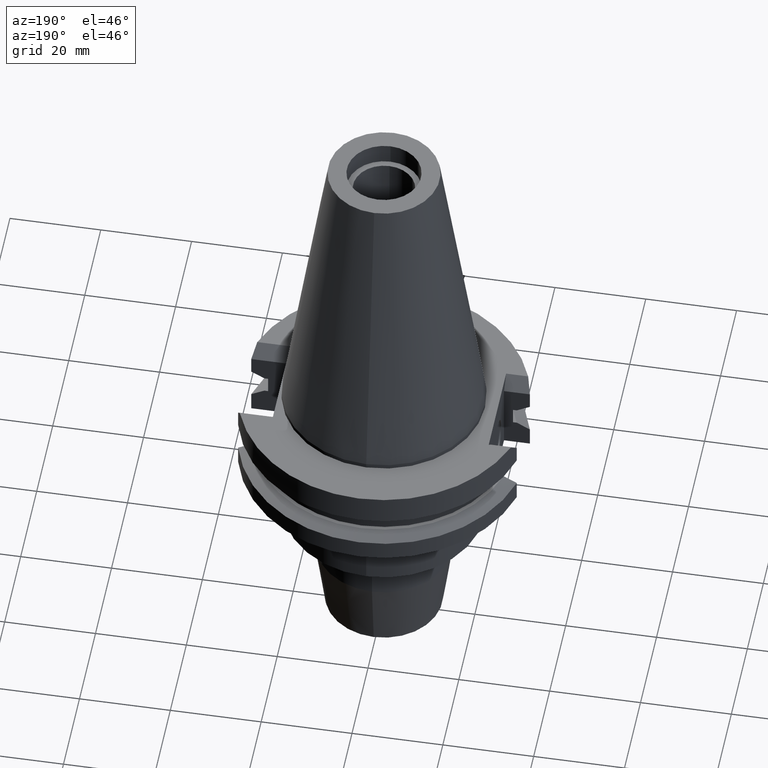
[diagram: clean part render]
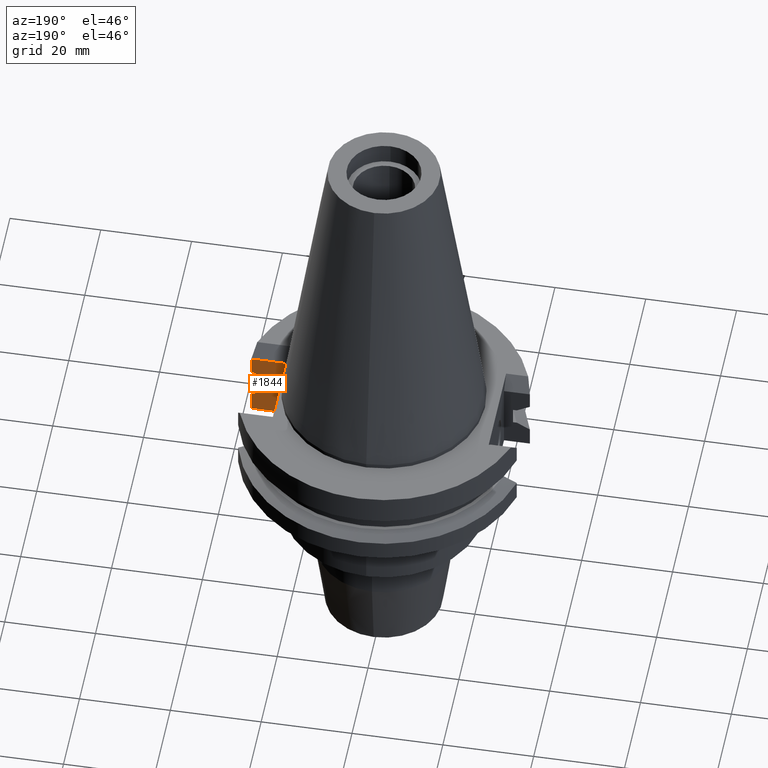
[diagram: same view with one face highlighted and labeled with its STEP entity id]
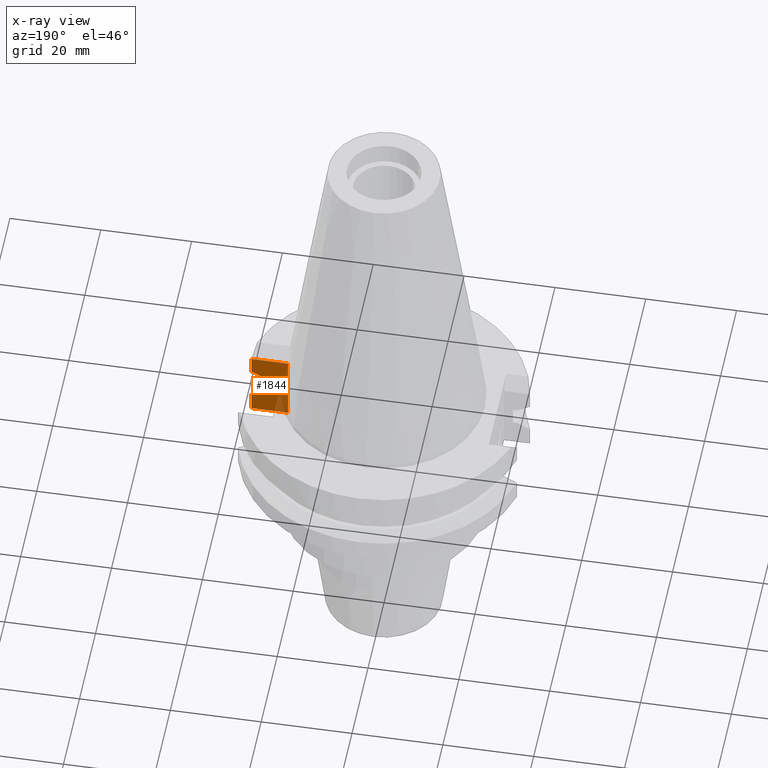
[diagram: x-ray of the same camera — body ghosted, the highlighted face saturated]
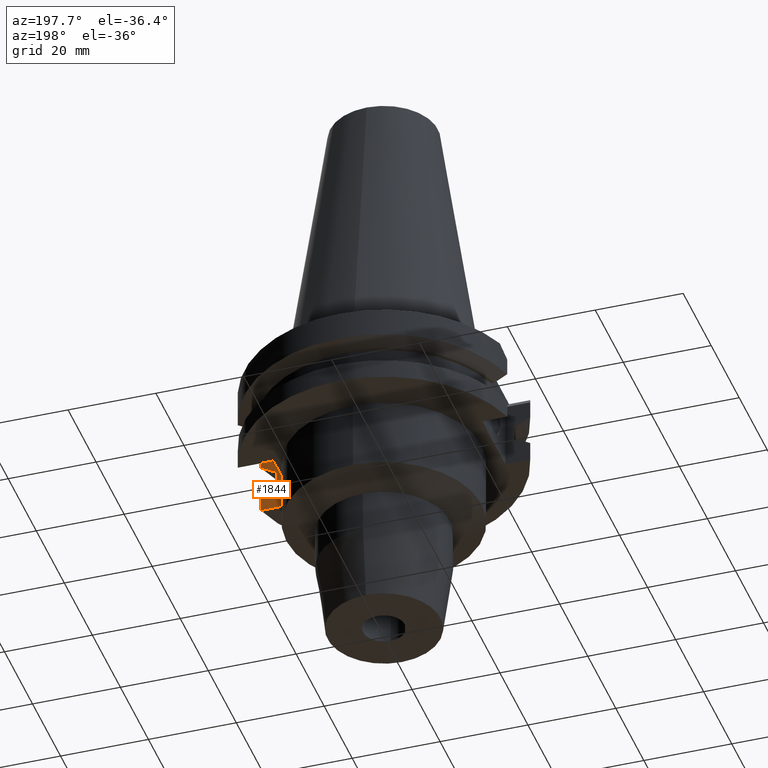
[diagram: same view with one face highlighted and labeled with its STEP entity id]
A machine part, auxiliary view. The second image highlights one B-rep face of the part: STEP entity #1844.
The next image is the same camera in x-ray: the body ghosted, the highlighted face saturated — about 21% of this face is hidden behind the body in this view.
A second angle (auxiliary view) of the same face is appended — the face is thin or edge-on in the first view.
In plain terms, the highlighted planar face has unit normal (0, -1, 0).
Its self-contained STEP definition (entity closure, byte-faithful):
#138=DIRECTION('',(0.E0,0.E0,1.E0));
#139=VECTOR('',#138,1.535E1);
#140=CARTESIAN_POINT('',(2.257E1,-8.19E0,-1.905E1));
#141=LINE('',#140,#139);
#551=DIRECTION('',(8.673235731993E-9,3.248500359666E-8,-1.E0));
#552=VECTOR('',#551,3.901334363437E0);
#553=CARTESIAN_POINT('',(3.067550162589E1,-8.19E0,-3.7E0));
#554=LINE('',#553,#552);
#565=CARTESIAN_POINT('',(3.067550162589E1,-8.19E0,-3.7E0));
#573=DIRECTION('',(1.E0,0.E0,0.E0));
#574=VECTOR('',#573,8.105501625890E0);
#575=CARTESIAN_POINT('',(2.257E1,-8.19E0,-1.905E1));
#576=LINE('',#575,#574);
#580=CARTESIAN_POINT('',(3.067550165973E1,-8.189999873269E0,-1.465366563656E1));
#581=CARTESIAN_POINT('',(3.035472638832E1,-8.189999873269E0,-1.447473356132E1));
#582=CARTESIAN_POINT('',(2.971302854440E1,-8.189999973531E0,-1.411712893224E1));
#583=CARTESIAN_POINT('',(2.874990656832E1,-8.190000282738E0,-1.358176285205E1));
#584=CARTESIAN_POINT('',(2.810748973799E1,-8.189999357924E0,-1.322544131159E1));
#585=CARTESIAN_POINT('',(2.778617708158E1,-8.189999357924E0,-1.30475E1));
#590=DIRECTION('',(9.999999999997E-1,7.806027589612E-7,-1.023617209022E-12));
#591=VECTOR('',#590,8.225664188280E-1);
#592=CARTESIAN_POINT('',(2.696361066326E1,-8.19E0,-9.2075E0));
#593=LINE('',#592,#591);
#597=DIRECTION('',(-1.E0,0.E0,0.E0));
#598=VECTOR('',#597,8.105501625890E0);
#599=CARTESIAN_POINT('',(3.067550162589E1,-8.19E0,-3.7E0));
#600=LINE('',#599,#598);
#604=DIRECTION('',(-7.696507787466E-9,-2.882656926959E-8,-1.E0));
#605=VECTOR('',#604,4.396334363443E0);
#606=CARTESIAN_POINT('',(3.067550165973E1,-8.189999873269E0,-1.465366563656E1));
#607=LINE('',#606,#605);
#642=CARTESIAN_POINT('',(3.067550165973E1,-8.189999873265E0,-7.601334363437E0));
#643=CARTESIAN_POINT('',(3.034658724943E1,-8.189999873265E0,-7.784806542429E0));
#644=CARTESIAN_POINT('',(2.969401521582E1,-8.189999973530E0,-8.148425165103E0));
#645=CARTESIAN_POINT('',(2.873091629514E1,-8.190000282747E0,-8.683831517379E0));
#646=CARTESIAN_POINT('',(2.809933694365E1,-8.189999357903E0,-9.034073664647E0));
#647=CARTESIAN_POINT('',(2.778617708209E1,-8.189999357903E0,-9.207500000001E0));
#717=DIRECTION('',(0.E0,0.E0,-1.E0));
#718=VECTOR('',#717,3.84E0);
#719=CARTESIAN_POINT('',(2.696361066326E1,-8.19E0,-9.2075E0));
#720=LINE('',#719,#718);
#731=DIRECTION('',(9.999999999997E-1,7.805772877912E-7,4.146297558113E-13));
#732=VECTOR('',#731,8.225664183158E-1);
#733=CARTESIAN_POINT('',(2.696361066326E1,-8.19E0,-1.30475E1));
#734=LINE('',#733,#732);
#1245=CARTESIAN_POINT('',(2.257E1,-8.19E0,-1.905E1));
#1247=VERTEX_POINT('',#1245);
#1248=CARTESIAN_POINT('',(2.257E1,-8.19E0,-3.7E0));
#1249=VERTEX_POINT('',#1248);
#1265=CARTESIAN_POINT('',(3.067550162589E1,-8.19E0,-1.905E1));
#1267=VERTEX_POINT('',#1265);
#1344=VERTEX_POINT('',#565);
#1345=CARTESIAN_POINT('',(3.067550165973E1,-8.189999873265E0,
-7.601334363437E0));
#1346=VERTEX_POINT('',#1345);
#1358=CARTESIAN_POINT('',(3.067550165973E1,-8.189999873269E0,
-1.465366563656E1));
#1359=VERTEX_POINT('',#1358);
#1360=VERTEX_POINT('',#585);
#1361=CARTESIAN_POINT('',(2.696361066326E1,-8.19E0,-1.30475E1));
#1362=VERTEX_POINT('',#1361);
#1363=CARTESIAN_POINT('',(2.696361066326E1,-8.19E0,-9.2075E0));
#1364=VERTEX_POINT('',#1363);
#1365=CARTESIAN_POINT('',(2.778617708209E1,-8.189999357903E0,
-9.207500000001E0));
#1366=VERTEX_POINT('',#1365);
#1821=CARTESIAN_POINT('',(2.257E1,-8.19E0,-3.7E0));
#1822=DIRECTION('',(0.E0,-1.E0,0.E0));
#1823=DIRECTION('',(0.E0,0.E0,-1.E0));
#1824=AXIS2_PLACEMENT_3D('',#1821,#1822,#1823);
#1825=PLANE('',#1824);
#1826=ORIENTED_EDGE('',*,*,#1548,.T.);
#1828=ORIENTED_EDGE('',*,*,#1827,.F.);
#1830=ORIENTED_EDGE('',*,*,#1829,.T.);
#1832=ORIENTED_EDGE('',*,*,#1831,.F.);
#1834=ORIENTED_EDGE('',*,*,#1833,.F.);
#1836=ORIENTED_EDGE('',*,*,#1835,.T.);
#1838=ORIENTED_EDGE('',*,*,#1837,.F.);
#1839=ORIENTED_EDGE('',*,*,#1794,.F.);
#1840=ORIENTED_EDGE('',*,*,#1816,.T.);
#1841=ORIENTED_EDGE('',*,*,#1514,.F.);
#1842=EDGE_LOOP('',(#1826,#1828,#1830,#1832,#1834,#1836,#1838,#1839,#1840,
#1841));
#1843=FACE_OUTER_BOUND('',#1842,.F.);
#586=B_SPLINE_CURVE_WITH_KNOTS('',3,(#580,#581,#582,#583,#584,#585),
.UNSPECIFIED.,.F.,.F.,(4,1,1,4),(0.E0,3.333333333333E-1,6.666666666667E-1,1.E0),
.UNSPECIFIED.);
#648=B_SPLINE_CURVE_WITH_KNOTS('',3,(#642,#643,#644,#645,#646,#647),
.UNSPECIFIED.,.F.,.F.,(4,1,1,4),(0.E0,3.333333333333E-1,6.666666666667E-1,1.E0),
.UNSPECIFIED.);
#1514=EDGE_CURVE('',#1247,#1249,#141,.T.);
#1548=EDGE_CURVE('',#1247,#1267,#576,.T.);
#1794=EDGE_CURVE('',#1344,#1346,#554,.T.);
#1816=EDGE_CURVE('',#1344,#1249,#600,.T.);
#1827=EDGE_CURVE('',#1359,#1267,#607,.T.);
#1829=EDGE_CURVE('',#1359,#1360,#586,.T.);
#1831=EDGE_CURVE('',#1362,#1360,#734,.T.);
#1833=EDGE_CURVE('',#1364,#1362,#720,.T.);
#1835=EDGE_CURVE('',#1364,#1366,#593,.T.);
#1837=EDGE_CURVE('',#1346,#1366,#648,.T.);
#1844=ADVANCED_FACE('',(#1843),#1825,.F.);